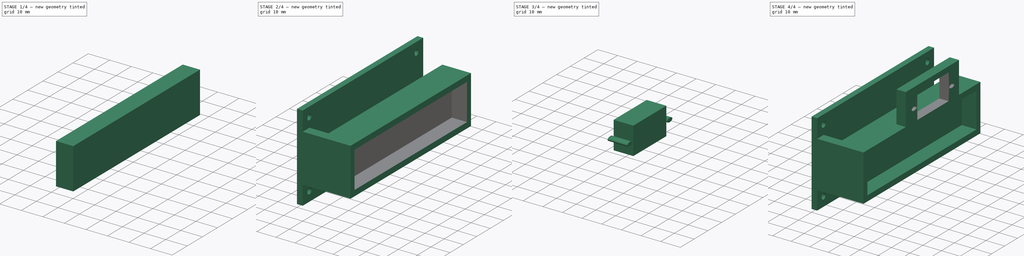
[diagram: build sequence overview — one tinted view per stage of 4, left to right]
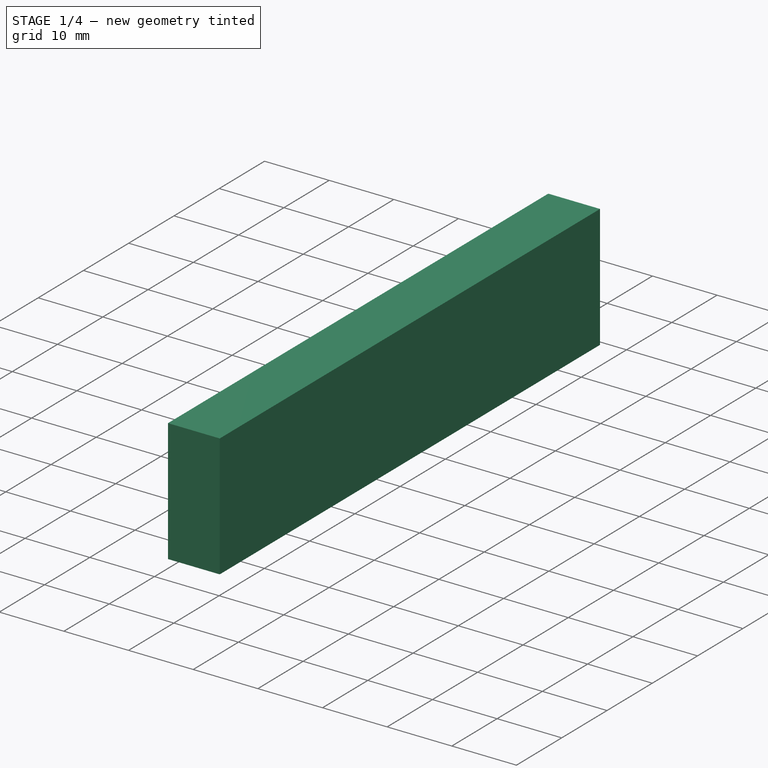
[diagram: stage 1 of 4 — iso view after this stage's code; geometry added in this stage tinted green]
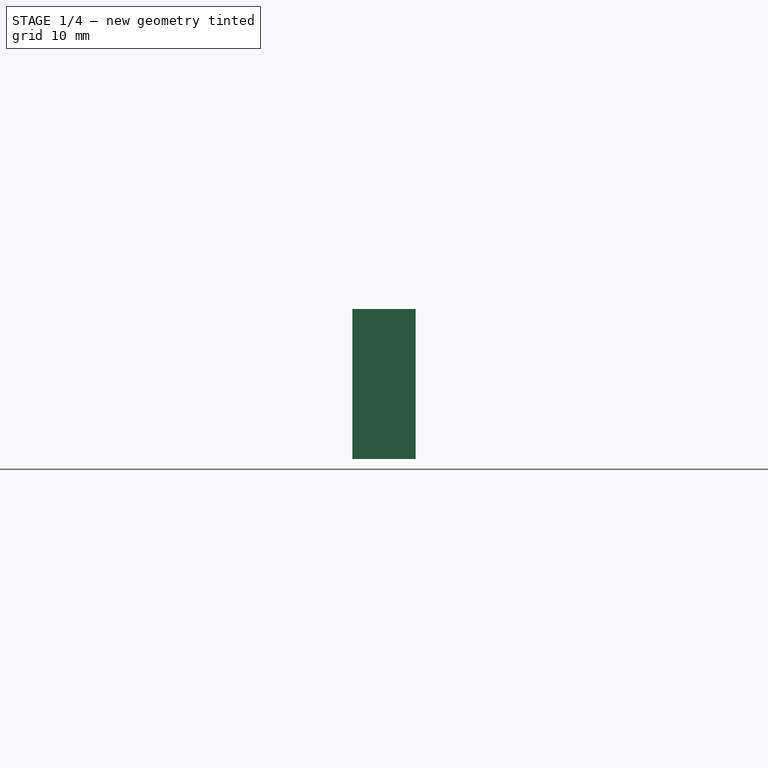
[diagram: stage 1 of 4 — front view after this stage's code; geometry added in this stage tinted green]
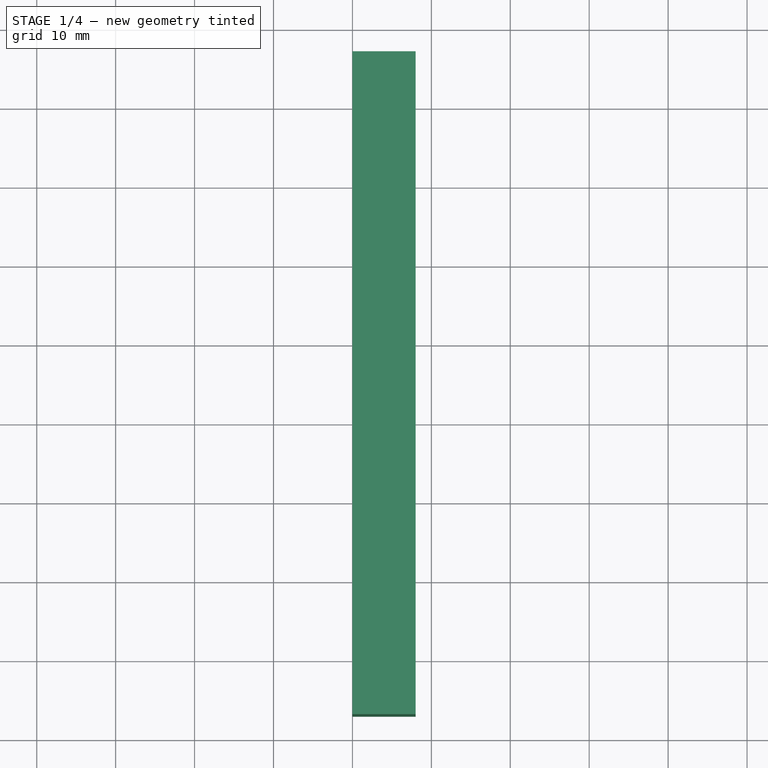
[diagram: stage 1 of 4 — top view after this stage's code; geometry added in this stage tinted green]
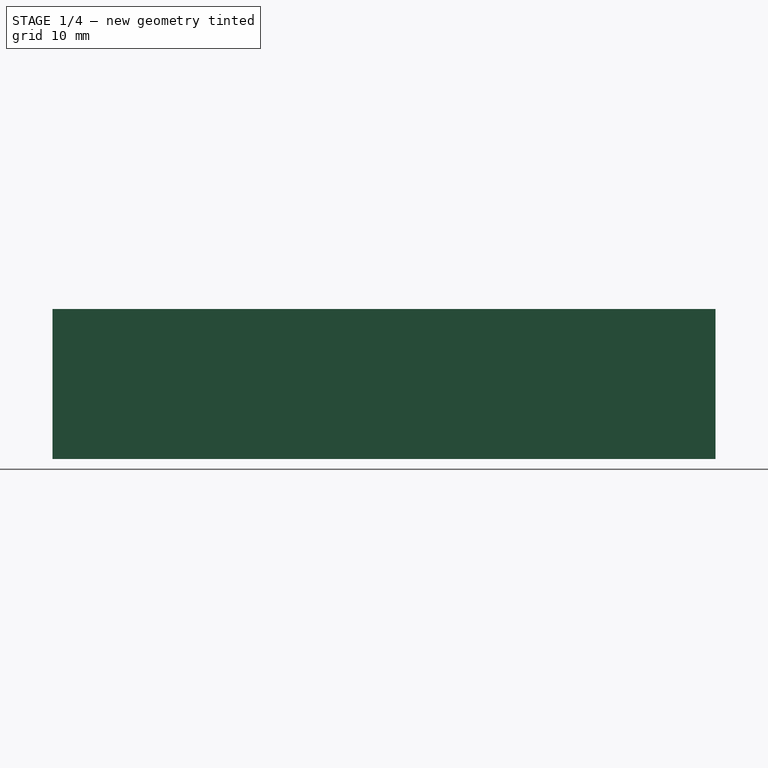
[diagram: stage 1 of 4 — right view after this stage's code; geometry added in this stage tinted green]
FCSTD DOCUMENT  (FreeCAD 0.18R16146 (Git))
Label: box
License: Creative Commons Attribution-ShareAlike
LicenseURL: http://creativecommons.org/licenses/by-sa/4.0/
objects: Part::Extrusion×8, Sketcher::SketchObject×6, Part::Cut×4, Part::MultiFuse×2, App::MeasureDistance×1
note: 20 computed .brp shape members not serialized (recipe doc carries the construction recipe); baked Part::Feature solids carry a one-line shape summary decoded from their .brp

FEATURE [Sketcher::SketchObject] Sketch
  Placement = pos=(0,0,0) rot=(1,0,0;1.5708rad)
  sketch-geometry (8):
    g0: LineSegment StartX=0 StartY=0 StartZ=0 EndX=0 EndY=45 EndZ=0
    g1: LineSegment StartX=0 StartY=45 StartZ=0 EndX=3 EndY=45 EndZ=0
    g2: LineSegment StartX=3 StartY=35 StartZ=0 EndX=3 EndY=45 EndZ=0
    g3: LineSegment StartX=3 StartY=35 StartZ=0 EndX=28 EndY=35 EndZ=0
    g4: LineSegment StartX=28 StartY=35 StartZ=0 EndX=28 EndY=10 EndZ=0
    g5: LineSegment StartX=28 StartY=10 StartZ=0 EndX=3 EndY=10 EndZ=0
    g6: LineSegment StartX=3 StartY=10 StartZ=0 EndX=3 EndY=0 EndZ=0
    g7: LineSegment StartX=3 StartY=0 StartZ=0 EndX=0 EndY=0 EndZ=0
  constraints (23):
    c: Vertical(g0)
    c: Horizontal(g1)
    c: Coincident(g2,g1)
    c: Vertical(g2)
    c: Coincident(g3,g2)
    c: Horizontal(g3)
    c: Coincident(g4,g3)
    c: Vertical(g4)
    c: Horizontal(g5)
    c: Coincident(g7,g6)
    c: Horizontal(g7)
    c: Coincident(g0,g-1)
    c: Coincident(g7,g0)
    c: Coincident(g1,g0)
    c: Coincident(g5,g4)
    c: Equal(g1,g7)
    c: Coincident(g5,g6)
    c: DistanceX(g1,g1) = 3
    c: DistanceY(g6,g6) = 10
    c: Equal(g3,g5)
    c: Equal(g2,g6)
    c: DistanceX(g3,g3) = 25
    c: DistanceY(g4,g4) = 25
FEATURE [Part::Extrusion] Extrude  label="lock holder"
  Base = -> Sketch
  Dir = (0,1,0)
  DirMode = 0
  FaceMakerClass = Part::FaceMakerBullseye
  LengthFwd = 90
  LengthRev = 0
  Solid = true
  Symmetric = false
FEATURE [Sketcher::SketchObject] Sketch001
  ExternalGeometry = -> [Extrude]
  MapMode = 5
  Placement = pos=(0,0,35) rot=(0,0,1;0rad)
  Support = -> [Extrude]
  sketch-geometry (4):
    g0: LineSegment StartX=3 StartY=90 StartZ=0 EndX=13 EndY=90 EndZ=0
    g1: LineSegment StartX=13 StartY=90 StartZ=0 EndX=13 EndY=5 EndZ=0
    g2: LineSegment StartX=13 StartY=5 StartZ=0 EndX=3 EndY=5 EndZ=0
    g3: LineSegment StartX=3 StartY=5 StartZ=0 EndX=3 EndY=90 EndZ=0
  constraints (12):
    c: Coincident(g0,g1)
    c: Coincident(g1,g2)
    c: Coincident(g2,g3)
    c: Coincident(g3,g0)
    c: Horizontal(g0)
    c: Horizontal(g2)
    c: Vertical(g1)
    c: Vertical(g3)
    c: DistanceY(g-3,g1) = 5
    c: DistanceX(g-4,g2) = 0
    c: DistanceX(g0,g0) = 10
    c: DistanceY(g0,g-3) = 0
FEATURE [Part::Extrusion] Extrude001  label="lock hole"
  Base = -> Sketch001
  Dir = (0,0,-1)
  DirMode = 0
  FaceMakerClass = Part::FaceMakerBullseye
  LengthFwd = 22.5
  LengthRev = 0
  Solid = true
  Symmetric = false
FEATURE [Part::Cut] Cut
  Base = -> Extrude
  Refine = true
  Tool = -> Extrude001
FEATURE [Sketcher::SketchObject] Sketch002
  ExternalGeometry = -> [Cut]
  MapMode = 5
  Placement = pos=(28,0,0) rot=(0.57735,0.57735,0.57735;2.0944rad)
  Support = -> [Cut]
  sketch-geometry (4):
    g0: LineSegment StartX=3 StartY=32 StartZ=0 EndX=87 EndY=32 EndZ=0
    g1: LineSegment StartX=87 StartY=32 StartZ=0 EndX=87 EndY=13 EndZ=0
    g2: LineSegment StartX=87 StartY=13 StartZ=0 EndX=3 EndY=13 EndZ=0
    g3: LineSegment StartX=3 StartY=13 StartZ=0 EndX=3 EndY=32 EndZ=0
  constraints (12):
    c: Coincident(g0,g1)
    c: Coincident(g1,g2)
    c: Coincident(g2,g3)
    c: Coincident(g3,g0)
    c: Horizontal(g0)
    c: Horizontal(g2)
    c: Vertical(g1)
    c: Vertical(g3)
    c: DistanceX(g-3,g2) = 3
    c: DistanceX(g1,g-4) = 3
    c: DistanceY(g0,g-4) = 3
    c: DistanceY(g-3,g2) = 3
FEATURE [Part::Extrusion] Extrude002  label="cavity"
  Base = -> Sketch002
  Dir = (-1,0,0)
  DirMode = 0
  FaceMakerClass = Part::FaceMakerBullseye
  LengthFwd = 8
  LengthRev = 0
  Solid = true
  Symmetric = false
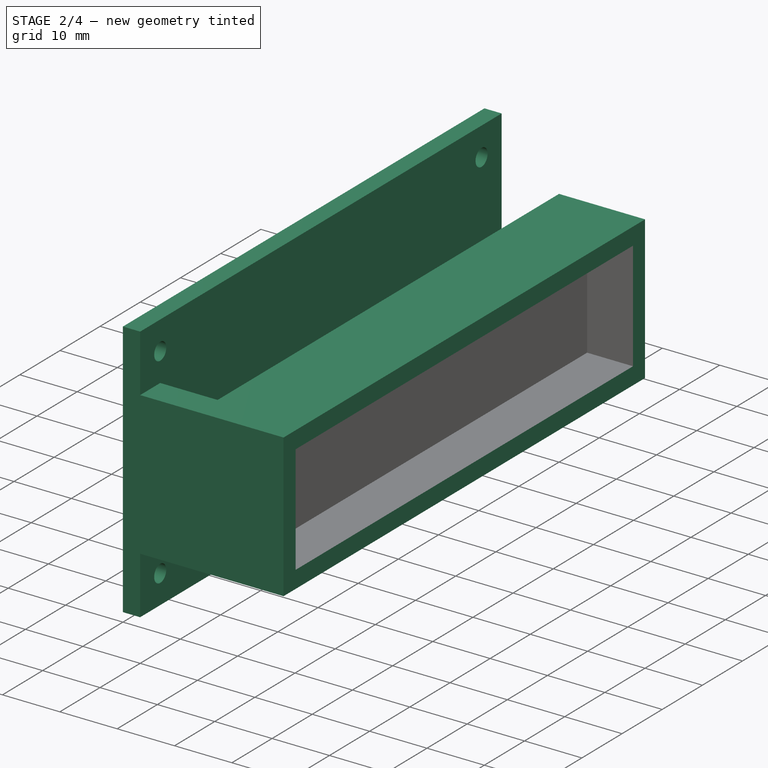
[diagram: stage 2 of 4 — iso view after this stage's code; geometry added in this stage tinted green]
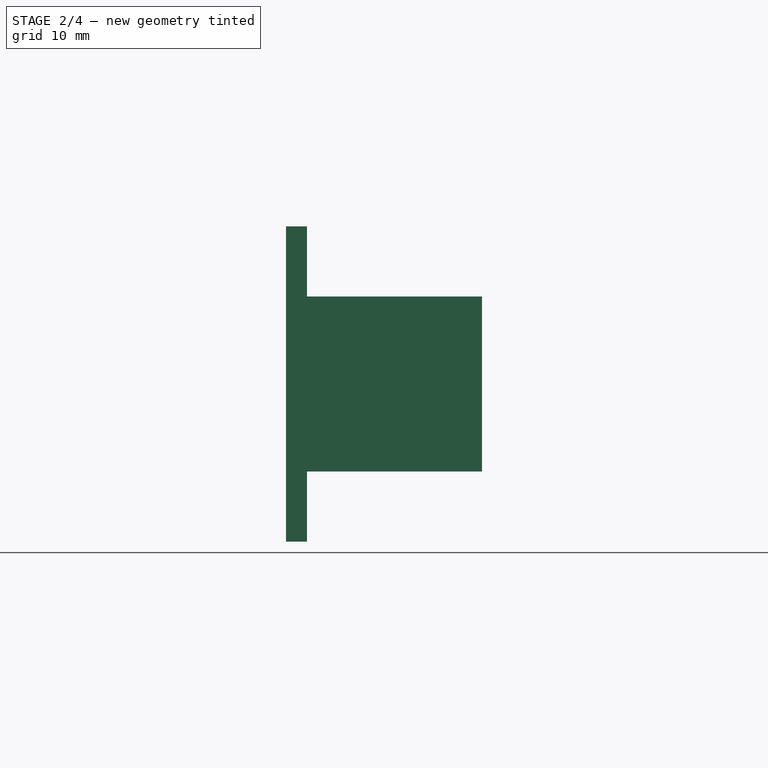
[diagram: stage 2 of 4 — front view after this stage's code; geometry added in this stage tinted green]
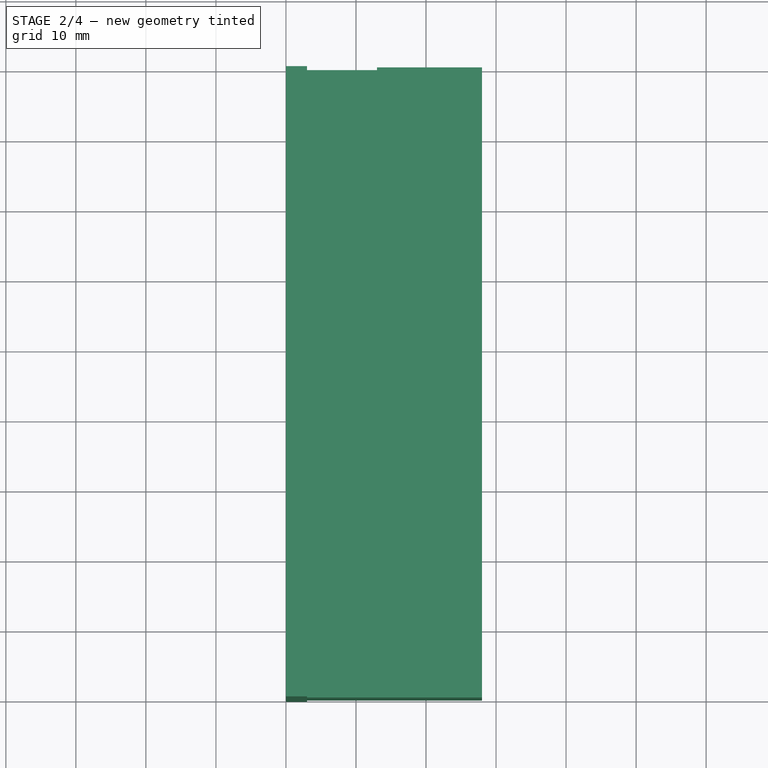
[diagram: stage 2 of 4 — top view after this stage's code; geometry added in this stage tinted green]
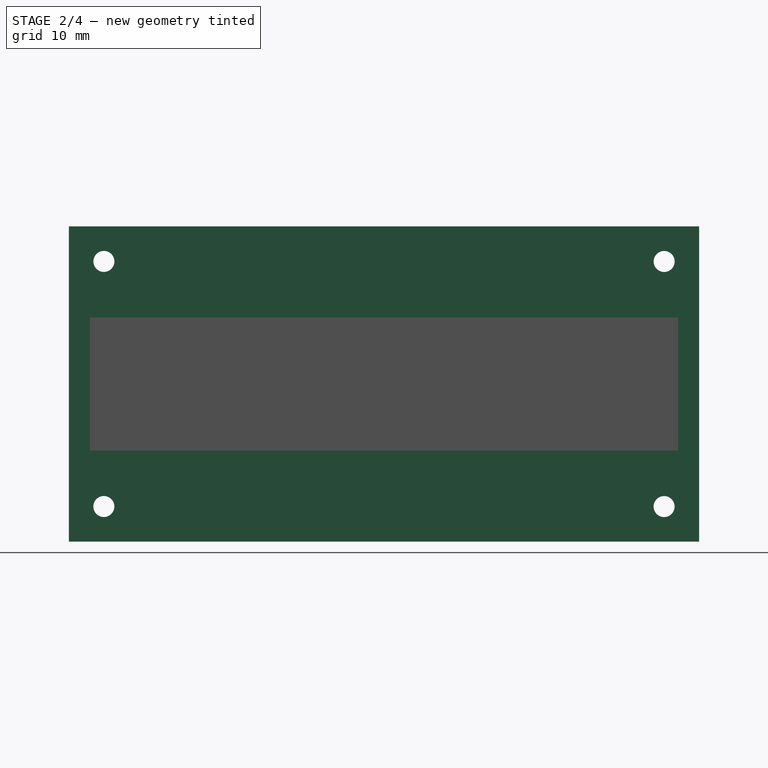
[diagram: stage 2 of 4 — right view after this stage's code; geometry added in this stage tinted green]
FEATURE [Part::Cut] Cut001
  Base = -> Cut
  Refine = true
  Tool = -> Extrude002
FEATURE [Sketcher::SketchObject] Sketch003
  ExternalGeometry = -> [Cut001]
  MapMode = 45
  Placement = pos=(3,46.2879,23.1439) rot=(0.707107,-0.000594,0.707107;3.14278rad)
  Support = -> [Cut001]
  sketch-geometry (21):
    g0: Circle CenterX=16.7868 CenterY=-38.7446 CenterZ=0 NormalX=0 NormalY=0 NormalZ=1 AngleXU=0 Radius=1.5
    g1: Circle CenterX=-18.2132 CenterY=-38.6774 CenterZ=0 NormalX=0 NormalY=0 NormalZ=1 AngleXU=0 Radius=1.5
    g2: Circle CenterX=16.9296 CenterY=41.2553 CenterZ=0 NormalX=0 NormalY=0 NormalZ=1 AngleXU=0 Radius=1.5
    g3: Circle CenterX=-18.0703 CenterY=41.3225 CenterZ=0 NormalX=0 NormalY=0 NormalZ=1 AngleXU=0 Radius=1.5
    g4: LineSegment [constr] StartX=11.917 StartY=36.2511 StartZ=0 EndX=21.917 EndY=36.2511 EndZ=0
    g5: LineSegment [constr] StartX=11.9338 StartY=46.2679 StartZ=0 EndX=21.917 EndY=36.2511 EndZ=0
    g6: LineSegment [constr] StartX=11.917 StartY=36.2511 StartZ=0 EndX=21.9338 EndY=46.2511 EndZ=0
    g7: GeomPoint X=16.9296 Y=41.2553 Z=0
    g8: GeomPoint X=16.9296 Y=41.2553 Z=0
    g9: LineSegment [constr] StartX=-23.0829 StartY=36.3267 StartZ=0 EndX=-13.0829 EndY=36.3267 EndZ=0
    g10: LineSegment [constr] StartX=-13.0829 StartY=36.3267 StartZ=0 EndX=-23.0661 EndY=46.3267 EndZ=0
    g11: LineSegment [constr] StartX=-23.0829 StartY=36.3267 StartZ=0 EndX=-13.0661 EndY=46.3099 EndZ=0
    g12: GeomPoint X=-18.0703 Y=41.3225 Z=0
    g13: LineSegment [constr] StartX=21.7994 StartY=-33.7488 StartZ=0 EndX=11.7993 EndY=-33.7488 EndZ=0
    g14: LineSegment [constr] StartX=11.7993 StartY=-33.7488 StartZ=0 EndX=21.7826 EndY=-43.7488 EndZ=0
    g15: LineSegment [constr] StartX=11.7826 StartY=-43.732 StartZ=0 EndX=21.7994 EndY=-33.7488 EndZ=0
    g16: GeomPoint X=16.7868 Y=-38.7446 Z=0
    g17: LineSegment [constr] StartX=-23.2006 StartY=-33.6732 StartZ=0 EndX=-13.2006 EndY=-33.6732 EndZ=0
    g18: LineSegment [constr] StartX=-23.2006 StartY=-33.6732 StartZ=0 EndX=-13.2174 EndY=-43.69 EndZ=0
    g19: LineSegment [constr] StartX=-23.2174 StartY=-43.6732 StartZ=0 EndX=-13.2006 EndY=-33.6732 EndZ=0
    g20: GeomPoint X=-18.2132 Y=-38.6774 Z=0
  constraints (49):
    c: PointOnObject(g4,g-9)
    c: PointOnObject(g4,g-4)
    c: Horizontal(g4)
    c: DistanceY(g4,g-5) = 10
    c: Coincident(g5,g-9)
    c: Coincident(g5,g4)
    c: Coincident(g6,g4)
    c: Coincident(g6,g-5)
    c: Coincident(g7,g2)
    c: PointOnObject(g8,g5)
    c: PointOnObject(g8,g6)
    c: Coincident(g2,g8)
    c: Radius(g2) = 1.5
    c: PointOnObject(g9,g-3)
    c: PointOnObject(g9,g-10)
    c: Horizontal(g9)
    c: Coincident(g10,g9)
    c: Coincident(g10,g-6)
    c: Coincident(g11,g9)
    c: Coincident(g11,g-10)
    c: DistanceY(g9,g10) = 10
    c: PointOnObject(g12,g10)
    c: PointOnObject(g12,g11)
    c: Coincident(g3,g12)
    c: Radius(g3) = 1.5
    c: PointOnObject(g13,g-4)
    c: PointOnObject(g13,g-9)
    c: Horizontal(g13)
    c: Coincident(g14,g13)
    c: Coincident(g14,g-8)
    c: Coincident(g15,g-9)
    c: Coincident(g15,g13)
    c: DistanceY(g14,g13) = 10
    c: PointOnObject(g16,g14)
    c: PointOnObject(g16,g15)
    c: Coincident(g0,g16)
    c: Radius(g0) = 1.5
    c: PointOnObject(g17,g-3)
    c: PointOnObject(g17,g-10)
    c: Horizontal(g17)
    c: Coincident(g18,g17)
    c: Coincident(g18,g-10)
    c: Coincident(g19,g-7)
    c: Coincident(g19,g17)
    c: DistanceY(g19,g17) = 10
    c: PointOnObject(g20,g18)
    c: PointOnObject(g20,g19)
    c: Coincident(g1,g20)
    c: Radius(g1) = 1.5
FEATURE [Part::Extrusion] Extrude003  label="screw holes"
  Base = -> Sketch003
  Dir = (-1,0,0)
  DirMode = 0
  FaceMakerClass = Part::FaceMakerBullseye
  LengthFwd = 5
  LengthRev = 0
  Solid = true
  Symmetric = false
FEATURE [Part::Cut] Cut002
  Base = -> Cut001
  Refine = true
  Tool = -> Extrude003
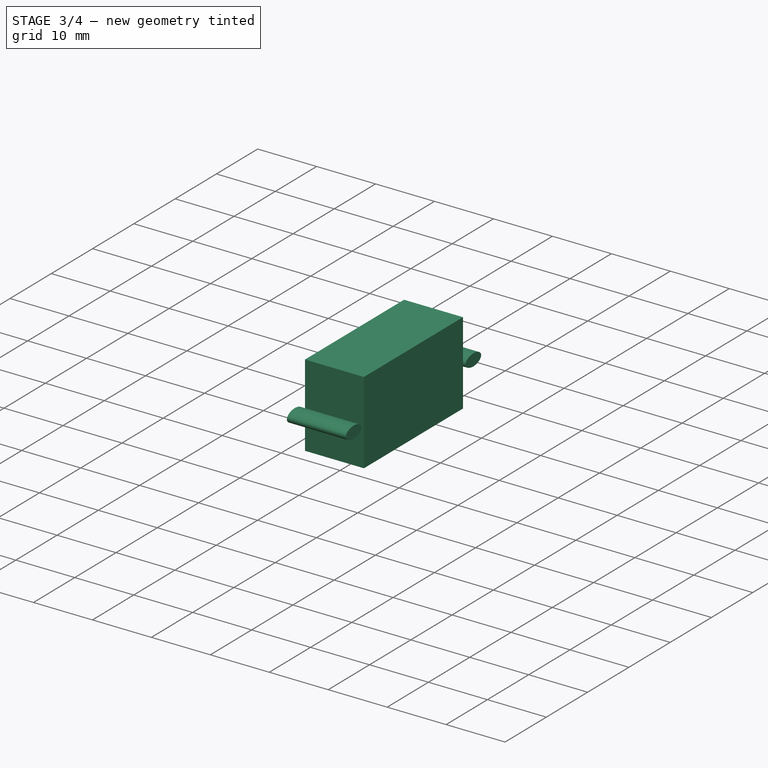
[diagram: stage 3 of 4 — iso view after this stage's code; geometry added in this stage tinted green]
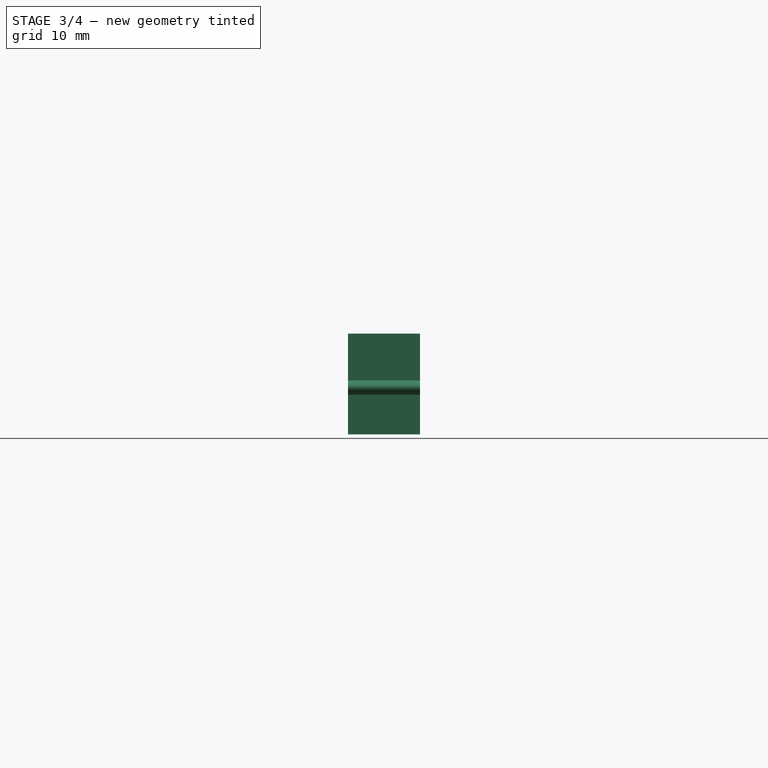
[diagram: stage 3 of 4 — front view after this stage's code; geometry added in this stage tinted green]
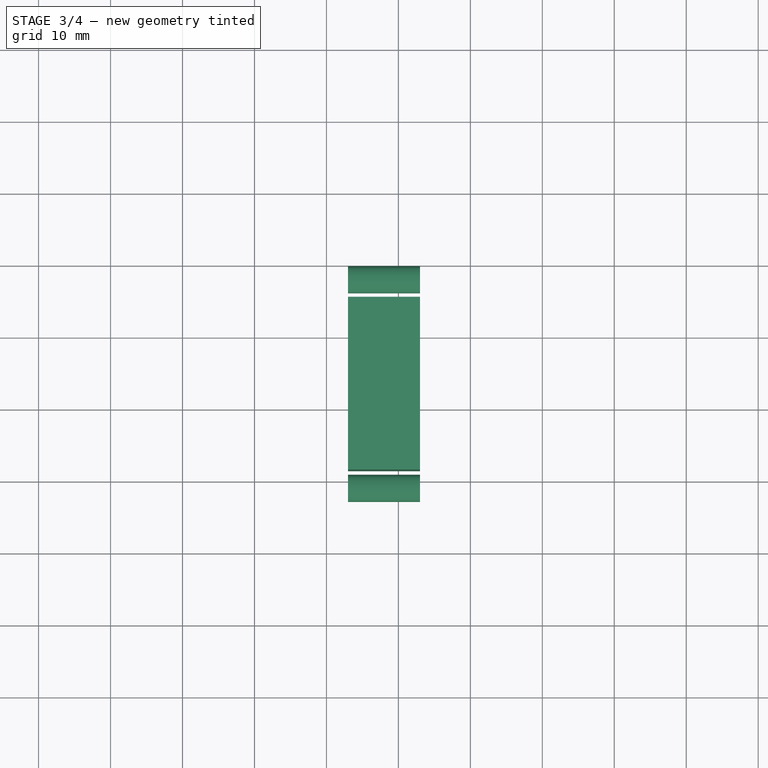
[diagram: stage 3 of 4 — top view after this stage's code; geometry added in this stage tinted green]
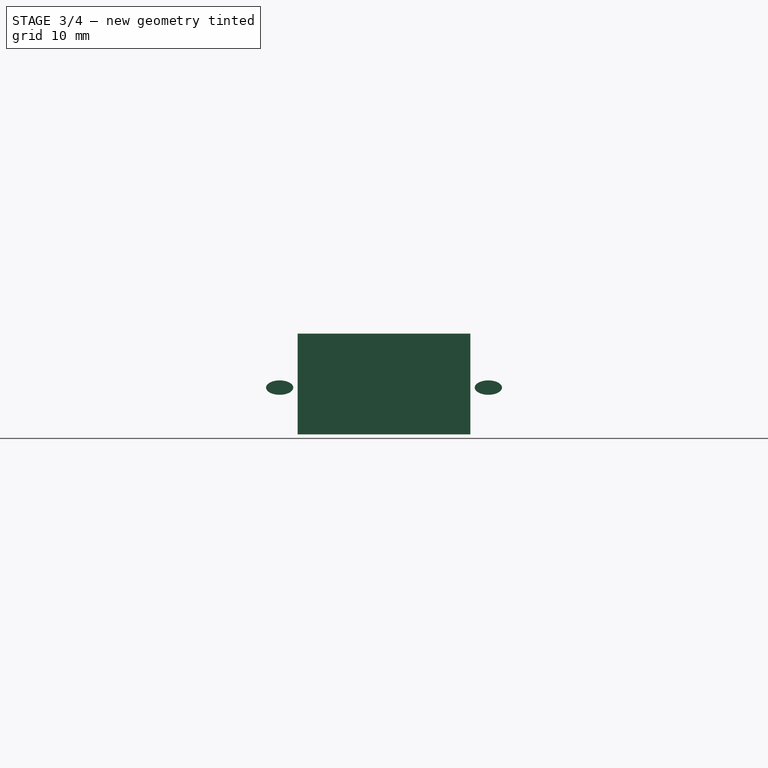
[diagram: stage 3 of 4 — right view after this stage's code; geometry added in this stage tinted green]
FEATURE [App::MeasureDistance] Distance  label="Distance: 22.50 mm"
  Distance = 22.5
  P1 = (13,90,35)
  P2 = (13,90,12.5)
FEATURE [Sketcher::SketchObject] Sketch004
  ExternalGeometry = -> [Cut002]
  MapMode = 5
  Placement = pos=(0,0,35) rot=(0,0,1;0rad)
  Support = -> [Cut002]
  sketch-geometry (4):
    g0: LineSegment StartX=23 StartY=73.5 StartZ=0 EndX=28 EndY=73.5 EndZ=0
    g1: LineSegment StartX=28 StartY=73.5 StartZ=0 EndX=28 EndY=32.5 EndZ=0
    g2: LineSegment StartX=28 StartY=32.5 StartZ=0 EndX=23 EndY=32.5 EndZ=0
    g3: LineSegment StartX=23 StartY=32.5 StartZ=0 EndX=23 EndY=73.5 EndZ=0
  constraints (12):
    c: Coincident(g0,g1)
    c: Coincident(g1,g2)
    c: Coincident(g2,g3)
    c: Coincident(g3,g0)
    c: Horizontal(g0)
    c: Horizontal(g2)
    c: Vertical(g1)
    c: Vertical(g3)
    c: DistanceX(g-4,g2) = 10
    c: DistanceY(g-4,g2) = 27.5
    c: PointOnObject(g0,g-5)
    c: DistanceY(g1,g1) = 41
FEATURE [Part::Extrusion] Extrude004  label="motor holder"
  Base = -> Sketch004
  Dir = (0,0,1)
  DirMode = 2
  FaceMakerClass = Part::FaceMakerBullseye
  LengthFwd = 17
  LengthRev = 0
  Solid = true
  Symmetric = false
FEATURE [Part::MultiFuse] Fusion
  Refine = true
  Shapes = -> [Cut002,Extrude004]
FEATURE [Part::Extrusion] Extrude007
  Base = -> Sketch005
  Dir = (1,0,0)
  DirMode = 0
  FaceMakerClass = Part::FaceMakerBullseye
  LengthFwd = 10
  LengthRev = 0
  Solid = true
  Symmetric = false
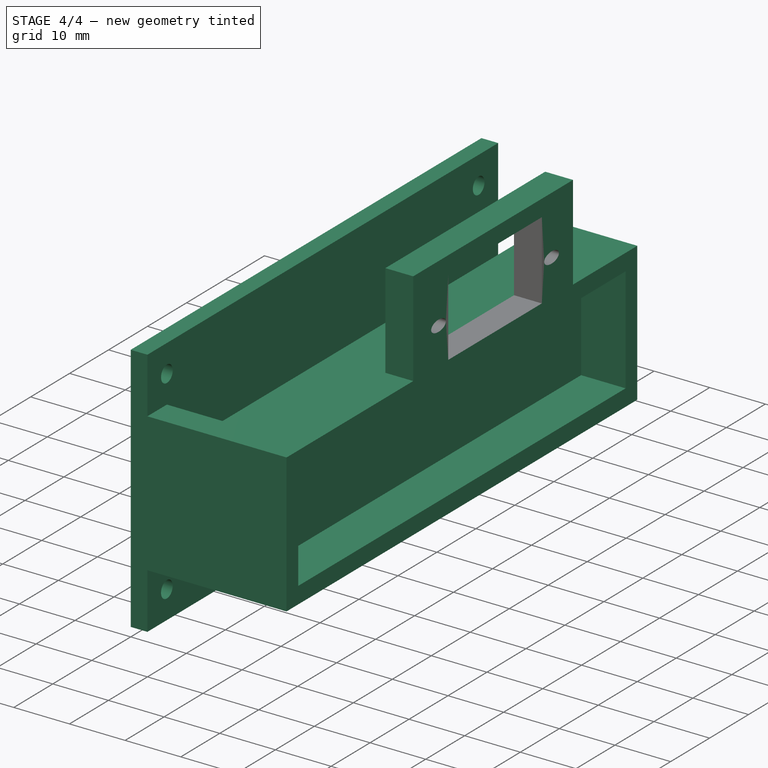
[diagram: stage 4 of 4 — iso view after this stage's code; geometry added in this stage tinted green]
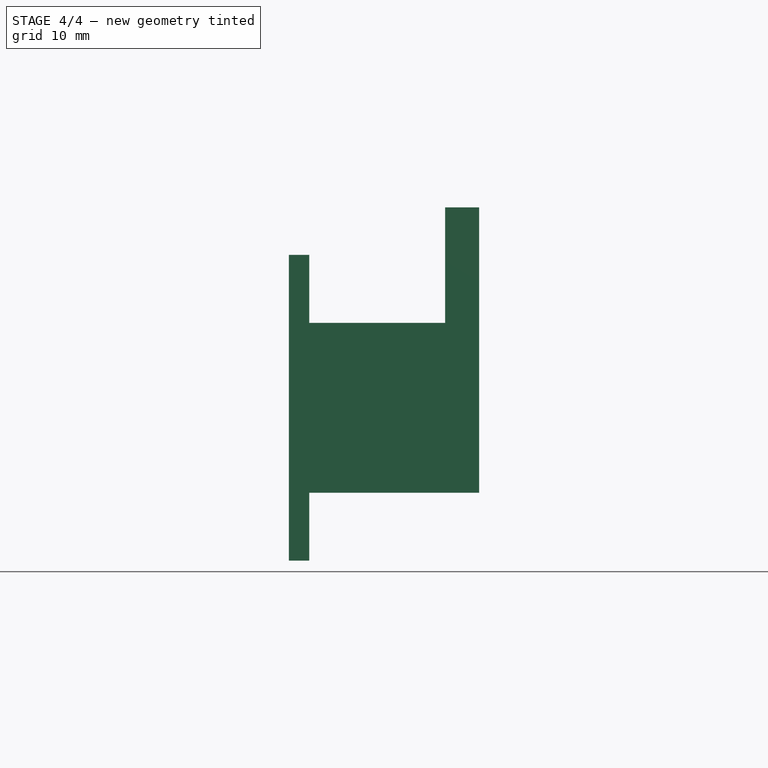
[diagram: stage 4 of 4 — front view after this stage's code; geometry added in this stage tinted green]
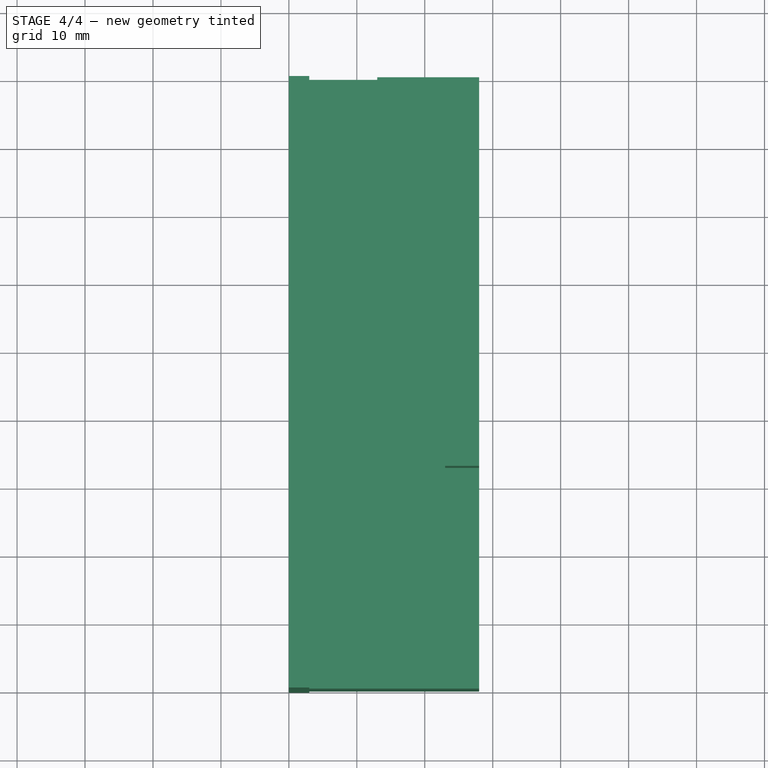
[diagram: stage 4 of 4 — top view after this stage's code; geometry added in this stage tinted green]
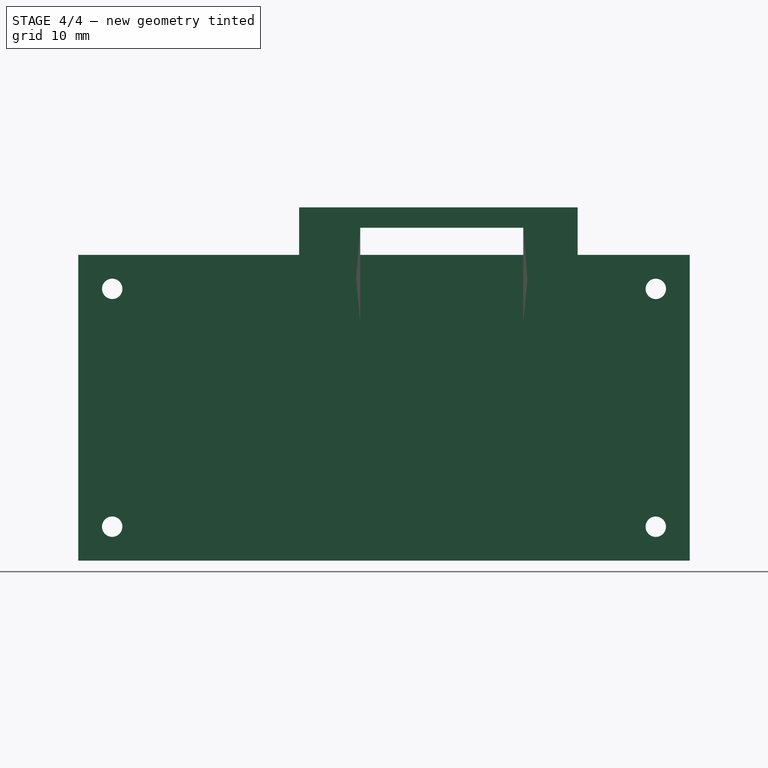
[diagram: stage 4 of 4 — right view after this stage's code; geometry added in this stage tinted green]
FEATURE [Sketcher::SketchObject] Sketch005
  ExternalGeometry = -> [Fusion]
  MapMode = 5
  Placement = pos=(23,0,0) rot=(0.57735,-0.57735,-0.57735;2.0944rad)
  Support = -> [Fusion]
  sketch-geometry (15):
    g0: LineSegment StartX=-65.5 StartY=49 StartZ=0 EndX=-41.5 EndY=49 EndZ=0
    g1: LineSegment StartX=-41.5 StartY=49 StartZ=0 EndX=-41.5 EndY=35 EndZ=0
    g2: LineSegment StartX=-41.5 StartY=35 StartZ=0 EndX=-65.5 EndY=35 EndZ=0
    g3: LineSegment StartX=-65.5 StartY=35 StartZ=0 EndX=-65.5 EndY=49 EndZ=0
    g4: LineSegment [constr] StartX=-65.5 StartY=41.5 StartZ=0 EndX=-41.5 EndY=41.5 EndZ=0
    g5: Ellipse CenterX=-68 CenterY=41.5 CenterZ=0 NormalX=0 NormalY=0 NormalZ=1 MajorRadius=1.89286 MinorRadius=1 AngleXU=0
    g6: LineSegment [constr] StartX=-66.1071 StartY=41.5 StartZ=0 EndX=-69.8929 EndY=41.5 EndZ=0
    g7: LineSegment [constr] StartX=-68 StartY=42.5 StartZ=0 EndX=-68 EndY=40.5 EndZ=0
    g8: GeomPoint X=-66.3929 Y=41.5 Z=0
    g9: GeomPoint X=-69.6071 Y=41.5 Z=0
    g10: Ellipse CenterX=-39 CenterY=41.5 CenterZ=0 NormalX=0 NormalY=0 NormalZ=1 MajorRadius=1.89286 MinorRadius=1 AngleXU=0
    g11: LineSegment [constr] StartX=-37.1071 StartY=41.5 StartZ=0 EndX=-40.8929 EndY=41.5 EndZ=0
    g12: LineSegment [constr] StartX=-39 StartY=42.5 StartZ=0 EndX=-39 EndY=40.5 EndZ=0
    g13: GeomPoint X=-37.3929 Y=41.5 Z=0
    g14: GeomPoint X=-40.6071 Y=41.5 Z=0
  constraints (28):
    c: Coincident(g0,g1)
    c: Coincident(g1,g2)
    c: Coincident(g2,g3)
    c: Coincident(g3,g0)
    c: Horizontal(g0)
    c: Horizontal(g2)
    c: Vertical(g1)
    c: PointOnObject(g1,g-3)
    c: Equal(g0,g2)
    c: DistanceX(g1,g-3) = 9
    c: DistanceY(g1,g0) = 14
    c: DistanceX(g0,g0) = 24
    c: PointOnObject(g4,g3)
    c: PointOnObject(g4,g1)
    c: Horizontal(g4)
    c: DistanceY(g2,g4) = 6.5
    c: InternalAlignment(g6-g9 -> g5) x4
    c: PointOnObject(g5,g4)
    c: DistanceX(g5,g4) = 2.5
    c: DistanceX(g9,g6) = 3.5
    c: PointOnObject(g6,g4)
    c: DistanceY(g7,g7) = 2
    c: InternalAlignment(g11-g14 -> g10) x4
    c: PointOnObject(g10,g4)
    c: PointOnObject(g14,g4)
    c: Equal(g11,g6)
    c: Equal(g7,g12)
    c: DistanceX(g4,g10) = 2.5
FEATURE [Part::Extrusion] Extrude005
  Base = -> Sketch005
  Dir = (1,0,0)
  DirMode = 0
  FaceMakerClass = Part::FaceMakerBullseye
  LengthFwd = 10
  LengthRev = 0
  Solid = true
  Symmetric = false
FEATURE [Part::Extrusion] Extrude006
  Base = -> Sketch005
  Dir = (1,0,0)
  DirMode = 0
  FaceMakerClass = Part::FaceMakerBullseye
  LengthFwd = 10
  LengthRev = 0
  Solid = true
  Symmetric = false
FEATURE [Part::MultiFuse] Fusion001  label="motor cavity"
  Refine = true
  Shapes = -> [Extrude005,Extrude006,Extrude007]
FEATURE [Part::Cut] Cut003
  Base = -> Fusion
  Refine = true
  Tool = -> Fusion001
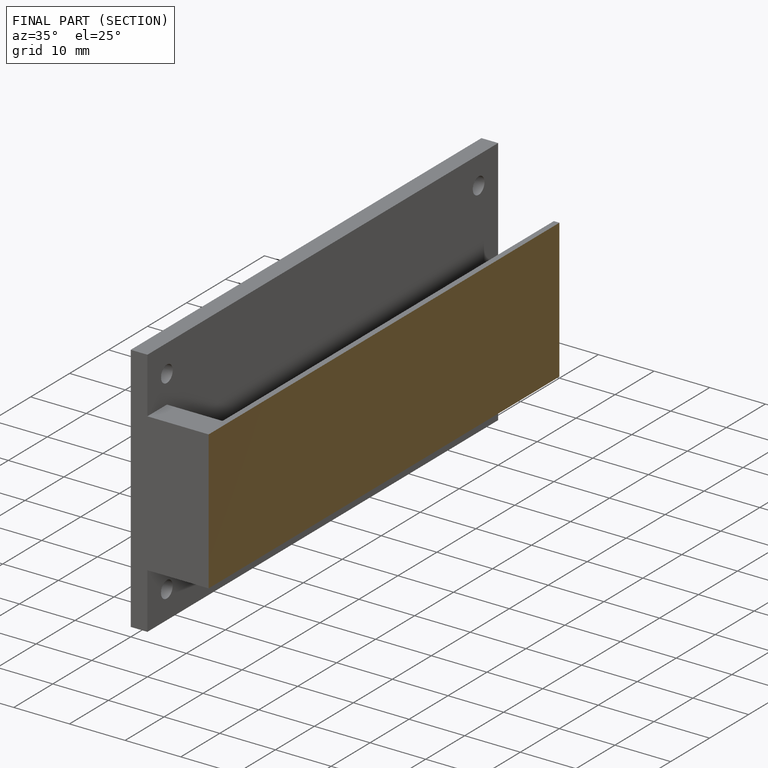
[diagram: finished part — half-section view (interior)]
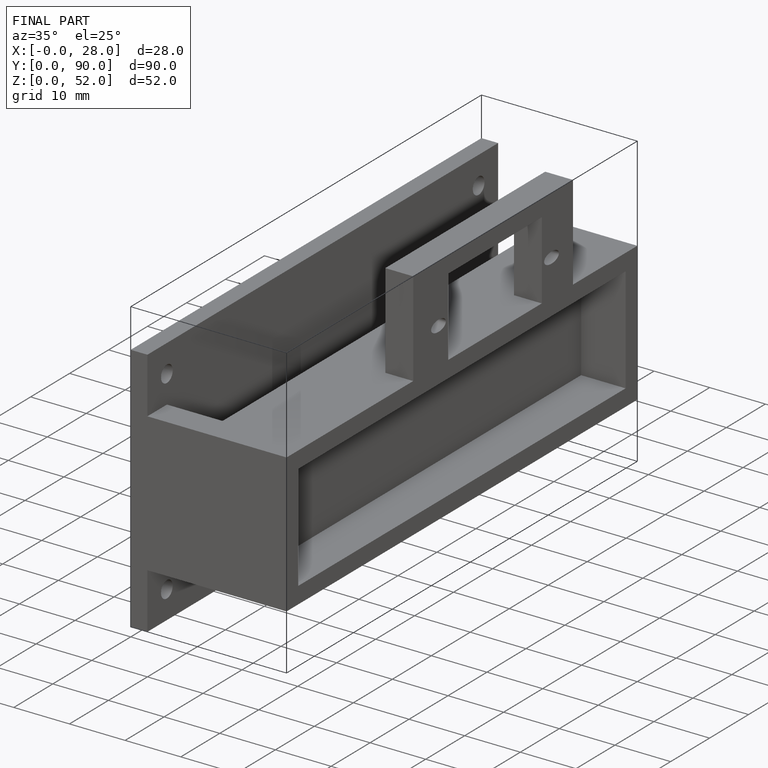
[diagram: finished part — iso view with bounding-box wireframe]
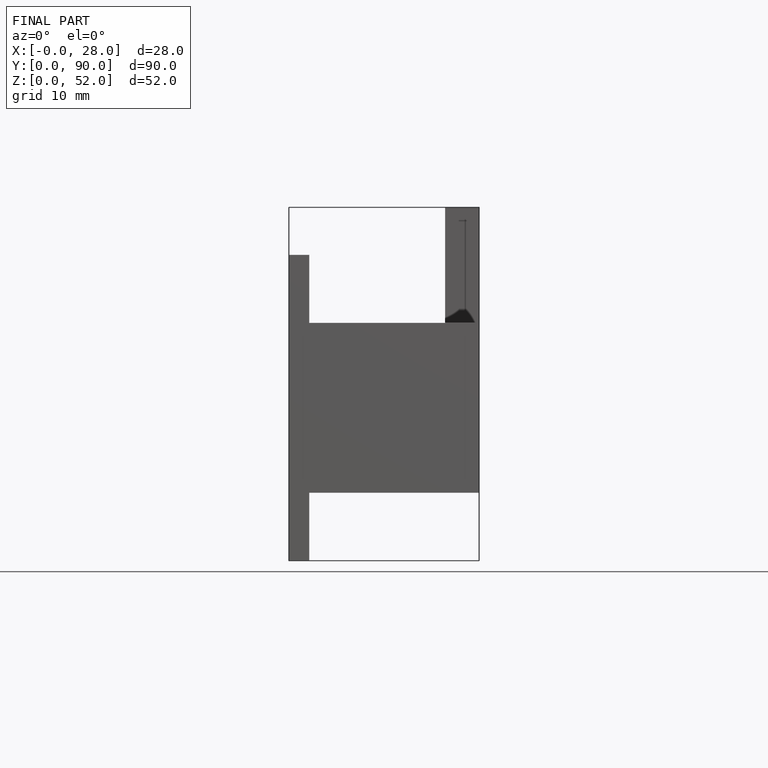
[diagram: finished part — front view with bounding-box wireframe]
